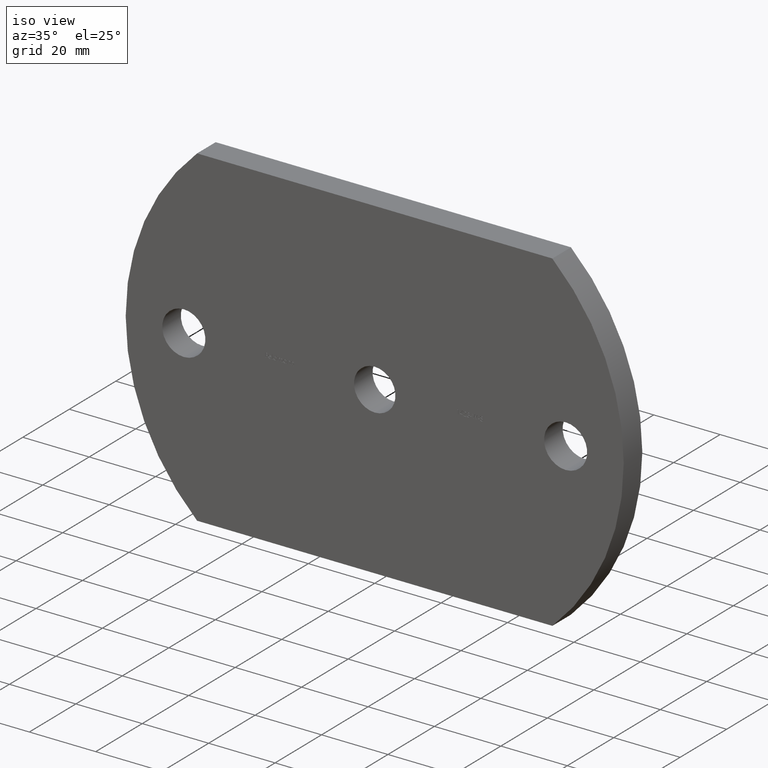
[diagram: clean part render]
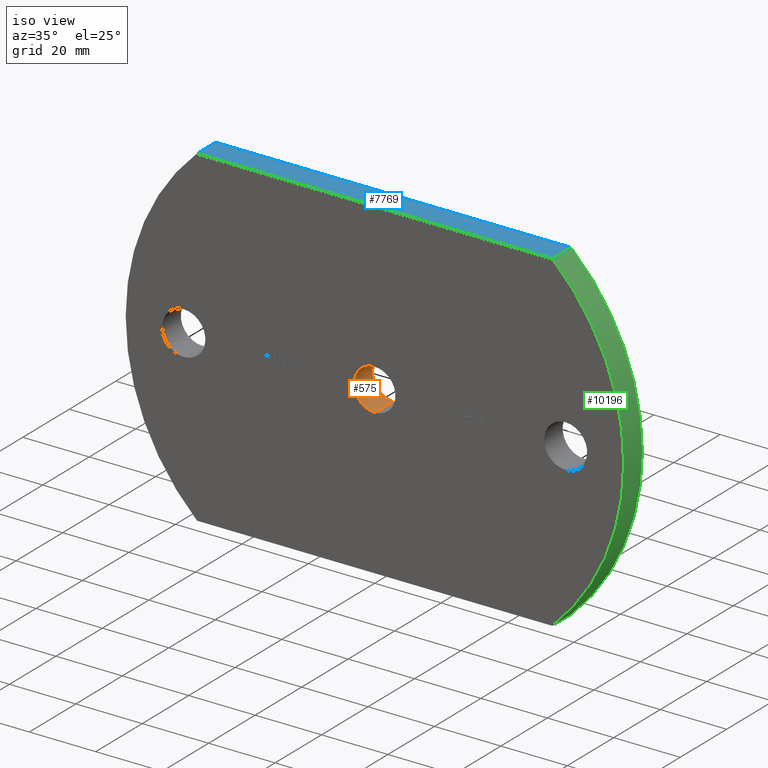
[diagram: same view with three faces highlighted in distinct colors, each labeled with its STEP entity id]
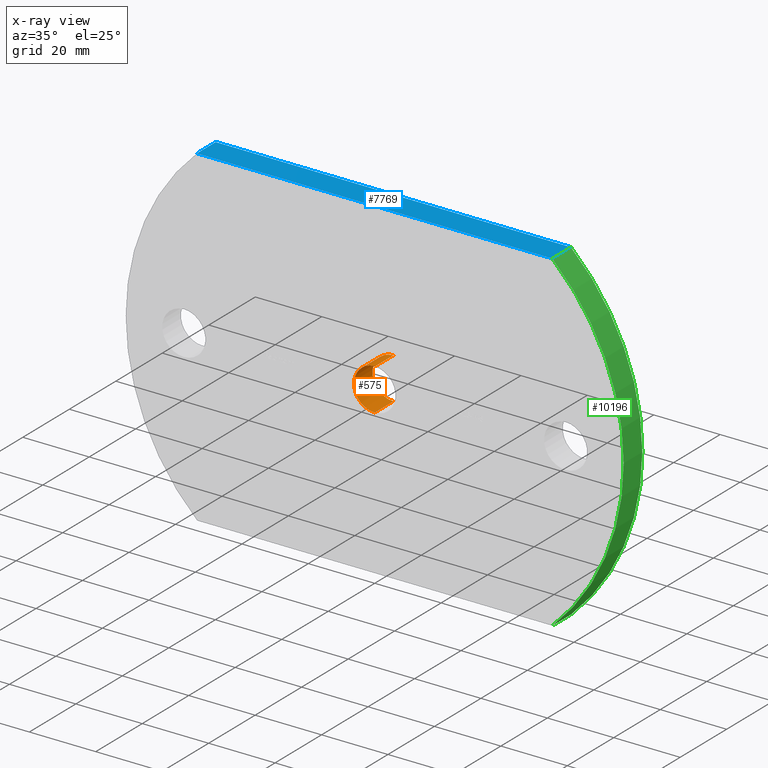
[diagram: x-ray of the same camera — body ghosted, the three highlighted faces saturated]
A machine part, iso view with three faces highlighted in distinct colors.
The next image is the same camera in x-ray (body ghosted, the three faces saturated) — at least one of them is partly hidden behind the body in this view.
Their STEP definitions:

[orange] entity #575 — the highlighted cylindrical surface (edge-blend (fillet) strip) has radius 6.25 mm, axis along (-0, 1, -0).
#20 = CARTESIAN_POINT ( 'NONE',  ( 7.654042494670957600E-016, 0.0000000000000000000, -6.250000000000000000 ) ) ;
#515 = FACE_OUTER_BOUND ( 'NONE', #1106, .T. ) ;
#569 = ORIENTED_EDGE ( 'NONE', *, *, #766, .T. ) ;
#575 = ADVANCED_FACE ( 'NONE', ( #515 ), #5913, .F. ) ;
#726 = DIRECTION ( 'NONE',  ( 0.0000000000000000000, 1.000000000000000000, 0.0000000000000000000 ) ) ;
#766 = EDGE_CURVE ( 'NONE', #8371, #11039, #2379, .T. ) ;
#1088 = LINE ( 'NONE', #5929, #1891 ) ;
#1106 = EDGE_LOOP ( 'NONE', ( #6740, #10033, #569, #9716 ) ) ;
#1891 = VECTOR ( 'NONE', #3463, 1000.000000000000000 ) ;
#2170 = VECTOR ( 'NONE', #9949, 1000.000000000000000 ) ;
#2284 = DIRECTION ( 'NONE',  ( 0.0000000000000000000, 0.0000000000000000000, 1.000000000000000000 ) ) ;
#2379 = CIRCLE ( 'NONE', #6668, 6.250000000000000000 ) ;
#3365 = DIRECTION ( 'NONE',  ( 0.0000000000000000000, 0.0000000000000000000, 1.000000000000000000 ) ) ;
#3463 = DIRECTION ( 'NONE',  ( -0.0000000000000000000, 1.000000000000000000, -0.0000000000000000000 ) ) ;
#3617 = DIRECTION ( 'NONE',  ( 0.0000000000000000000, 0.0000000000000000000, 1.000000000000000000 ) ) ;
#4047 = CARTESIAN_POINT ( 'NONE',  ( 0.0000000000000000000, 0.0000000000000000000, 0.0000000000000000000 ) ) ;
#5008 = VERTEX_POINT ( 'NONE', #20 ) ;
#5520 = CARTESIAN_POINT ( 'NONE',  ( 7.654042494670957600E-016, 0.0000000000000000000, -6.250000000000000000 ) ) ;
#5743 = CIRCLE ( 'NONE', #6687, 6.250000000000000000 ) ;
#5913 = CYLINDRICAL_SURFACE ( 'NONE', #6897, 6.250000000000000000 ) ;
#5929 = CARTESIAN_POINT ( 'NONE',  ( 0.0000000000000000000, 0.0000000000000000000, 6.250000000000000000 ) ) ;
#6220 = EDGE_CURVE ( 'NONE', #9806, #11039, #1088, .T. ) ;
#6668 = AXIS2_PLACEMENT_3D ( 'NONE', #7658, #726, #3365 ) ;
#6687 = AXIS2_PLACEMENT_3D ( 'NONE', #7054, #7089, #3617 ) ;
#6740 = ORIENTED_EDGE ( 'NONE', *, *, #8071, .F. ) ;
#6897 = AXIS2_PLACEMENT_3D ( 'NONE', #4047, #7504, #2284 ) ;
#7054 = CARTESIAN_POINT ( 'NONE',  ( 0.0000000000000000000, 0.0000000000000000000, 0.0000000000000000000 ) ) ;
#7089 = DIRECTION ( 'NONE',  ( 0.0000000000000000000, 1.000000000000000000, 0.0000000000000000000 ) ) ;
#7442 = LINE ( 'NONE', #5520, #2170 ) ;
#7504 = DIRECTION ( 'NONE',  ( -0.0000000000000000000, 1.000000000000000000, -0.0000000000000000000 ) ) ;
#7658 = CARTESIAN_POINT ( 'NONE',  ( 0.0000000000000000000, 8.000000000000000000, 0.0000000000000000000 ) ) ;
#8071 = EDGE_CURVE ( 'NONE', #5008, #9806, #5743, .T. ) ;
#8371 = VERTEX_POINT ( 'NONE', #9447 ) ;
#9447 = CARTESIAN_POINT ( 'NONE',  ( 7.654042494670957600E-016, 8.000000000000000000, -6.250000000000000000 ) ) ;
#9716 = ORIENTED_EDGE ( 'NONE', *, *, #6220, .F. ) ;
#9806 = VERTEX_POINT ( 'NONE', #10362 ) ;
#9949 = DIRECTION ( 'NONE',  ( -0.0000000000000000000, 1.000000000000000000, -0.0000000000000000000 ) ) ;
#10033 = ORIENTED_EDGE ( 'NONE', *, *, #10643, .T. ) ;
#10362 = CARTESIAN_POINT ( 'NONE',  ( 0.0000000000000000000, 0.0000000000000000000, 6.250000000000000000 ) ) ;
#10643 = EDGE_CURVE ( 'NONE', #5008, #8371, #7442, .T. ) ;
#10915 = CARTESIAN_POINT ( 'NONE',  ( 0.0000000000000000000, 8.000000000000000000, 6.250000000000000000 ) ) ;
#11039 = VERTEX_POINT ( 'NONE', #10915 ) ;

[blue] entity #7769 — the highlighted planar face has unit normal (0, 0, -1).
#146 = VERTEX_POINT ( 'NONE', #4804 ) ;
#609 = CARTESIAN_POINT ( 'NONE',  ( -53.50000000000003600, 8.000000000000000000, 49.99999999999998600 ) ) ;
#790 = DIRECTION ( 'NONE',  ( -1.000000000000000000, 0.0000000000000000000, -2.593979029498029800E-016 ) ) ;
#970 = VECTOR ( 'NONE', #9490, 1000.000000000000000 ) ;
#1288 = DIRECTION ( 'NONE',  ( -0.0000000000000000000, -1.000000000000000000, -0.0000000000000000000 ) ) ;
#1587 = CARTESIAN_POINT ( 'NONE',  ( -53.50000000000003600, 0.0000000000000000000, 49.99999999999998600 ) ) ;
#1612 = CARTESIAN_POINT ( 'NONE',  ( -53.50000000000003600, 8.000000000000000000, 49.99999999999998600 ) ) ;
#2040 = CARTESIAN_POINT ( 'NONE',  ( -53.50000000000003600, 8.000000000000000000, 49.99999999999998600 ) ) ;
#2088 = ORIENTED_EDGE ( 'NONE', *, *, #6080, .F. ) ;
#2270 = VERTEX_POINT ( 'NONE', #11154 ) ;
#2399 = ORIENTED_EDGE ( 'NONE', *, *, #5447, .F. ) ;
#3458 = EDGE_CURVE ( 'NONE', #4503, #2270, #9614, .T. ) ;
#3790 = VECTOR ( 'NONE', #4087, 1000.000000000000000 ) ;
#4087 = DIRECTION ( 'NONE',  ( 1.000000000000000000, 0.0000000000000000000, 2.593979029498029300E-016 ) ) ;
#4403 = VECTOR ( 'NONE', #1288, 1000.000000000000000 ) ;
#4503 = VERTEX_POINT ( 'NONE', #1587 ) ;
#4804 = CARTESIAN_POINT ( 'NONE',  ( 53.49999999999996400, 8.000000000000000000, 50.00000000000001400 ) ) ;
#4824 = FACE_OUTER_BOUND ( 'NONE', #9360, .T. ) ;
#4919 = VECTOR ( 'NONE', #9451, 1000.000000000000000 ) ;
#5252 = ORIENTED_EDGE ( 'NONE', *, *, #9105, .T. ) ;
#5447 = EDGE_CURVE ( 'NONE', #146, #2270, #7314, .T. ) ;
#5954 = LINE ( 'NONE', #609, #3790 ) ;
#6080 = EDGE_CURVE ( 'NONE', #9162, #146, #5954, .T. ) ;
#6825 = DIRECTION ( 'NONE',  ( 2.593979029498029800E-016, 0.0000000000000000000, -1.000000000000000000 ) ) ;
#6843 = AXIS2_PLACEMENT_3D ( 'NONE', #1612, #6825, #790 ) ;
#6893 = CARTESIAN_POINT ( 'NONE',  ( -53.50000000000003600, 0.0000000000000000000, 49.99999999999998600 ) ) ;
#6953 = LINE ( 'NONE', #2040, #4403 ) ;
#7314 = LINE ( 'NONE', #10320, #970 ) ;
#7396 = CARTESIAN_POINT ( 'NONE',  ( -53.50000000000003600, 8.000000000000000000, 49.99999999999998600 ) ) ;
#7769 = ADVANCED_FACE ( 'NONE', ( #4824 ), #10214, .F. ) ;
#9105 = EDGE_CURVE ( 'NONE', #9162, #4503, #6953, .T. ) ;
#9162 = VERTEX_POINT ( 'NONE', #7396 ) ;
#9360 = EDGE_LOOP ( 'NONE', ( #9398, #2399, #2088, #5252 ) ) ;
#9398 = ORIENTED_EDGE ( 'NONE', *, *, #3458, .T. ) ;
#9451 = DIRECTION ( 'NONE',  ( 1.000000000000000000, 0.0000000000000000000, 2.593979029498029300E-016 ) ) ;
#9490 = DIRECTION ( 'NONE',  ( -0.0000000000000000000, -1.000000000000000000, -0.0000000000000000000 ) ) ;
#9614 = LINE ( 'NONE', #6893, #4919 ) ;
#10214 = PLANE ( 'NONE',  #6843 ) ;
#10320 = CARTESIAN_POINT ( 'NONE',  ( 53.49999999999996400, 8.000000000000000000, 50.00000000000001400 ) ) ;
#11154 = CARTESIAN_POINT ( 'NONE',  ( 53.49999999999996400, 0.0000000000000000000, 50.00000000000001400 ) ) ;

[green] entity #10196 — the highlighted cylindrical surface (partial cylindrical patch) has radius 68.8895 mm, axis along (-0, -1, -0).
#146 = VERTEX_POINT ( 'NONE', #4804 ) ;
#970 = VECTOR ( 'NONE', #9490, 1000.000000000000000 ) ;
#1266 = VERTEX_POINT ( 'NONE', #5302 ) ;
#1888 = DIRECTION ( 'NONE',  ( 0.0000000000000000000, 0.0000000000000000000, -1.000000000000000000 ) ) ;
#1952 = VECTOR ( 'NONE', #7866, 1000.000000000000000 ) ;
#2057 = DIRECTION ( 'NONE',  ( 0.0000000000000000000, 1.000000000000000000, -0.0000000000000000000 ) ) ;
#2270 = VERTEX_POINT ( 'NONE', #11154 ) ;
#2338 = EDGE_CURVE ( 'NONE', #1266, #7149, #7091, .T. ) ;
#2558 = EDGE_CURVE ( 'NONE', #2270, #7149, #3030, .T. ) ;
#2826 = ORIENTED_EDGE ( 'NONE', *, *, #5447, .T. ) ;
#2984 = DIRECTION ( 'NONE',  ( 0.0000000000000000000, 0.0000000000000000000, -1.000000000000000000 ) ) ;
#3030 = CIRCLE ( 'NONE', #8580, 68.88953488372092700 ) ;
#3588 = EDGE_CURVE ( 'NONE', #146, #1266, #5042, .T. ) ;
#3637 = DIRECTION ( 'NONE',  ( -0.0000000000000000000, -1.000000000000000000, -0.0000000000000000000 ) ) ;
#3987 = DIRECTION ( 'NONE',  ( 0.0000000000000000000, 0.0000000000000000000, -1.000000000000000000 ) ) ;
#4318 = ORIENTED_EDGE ( 'NONE', *, *, #2338, .F. ) ;
#4514 = FACE_OUTER_BOUND ( 'NONE', #5543, .T. ) ;
#4561 = CARTESIAN_POINT ( 'NONE',  ( 6.110465116279065100, 8.000000000000000000, 0.0000000000000000000 ) ) ;
#4804 = CARTESIAN_POINT ( 'NONE',  ( 53.49999999999996400, 8.000000000000000000, 50.00000000000001400 ) ) ;
#4844 = ORIENTED_EDGE ( 'NONE', *, *, #2558, .T. ) ;
#5042 = CIRCLE ( 'NONE', #10292, 68.88953488372092700 ) ;
#5302 = CARTESIAN_POINT ( 'NONE',  ( 53.50000000000000700, 8.000000000000000000, -49.99999999999998600 ) ) ;
#5447 = EDGE_CURVE ( 'NONE', #146, #2270, #7314, .T. ) ;
#5543 = EDGE_LOOP ( 'NONE', ( #4844, #4318, #8137, #2826 ) ) ;
#6173 = CARTESIAN_POINT ( 'NONE',  ( 53.50000000000000700, 8.000000000000000000, -49.99999999999998600 ) ) ;
#7091 = LINE ( 'NONE', #6173, #1952 ) ;
#7149 = VERTEX_POINT ( 'NONE', #7171 ) ;
#7171 = CARTESIAN_POINT ( 'NONE',  ( 53.50000000000000700, 0.0000000000000000000, -49.99999999999998600 ) ) ;
#7314 = LINE ( 'NONE', #10320, #970 ) ;
#7866 = DIRECTION ( 'NONE',  ( -0.0000000000000000000, -1.000000000000000000, -0.0000000000000000000 ) ) ;
#7897 = AXIS2_PLACEMENT_3D ( 'NONE', #4561, #3637, #1888 ) ;
#8137 = ORIENTED_EDGE ( 'NONE', *, *, #3588, .F. ) ;
#8242 = CARTESIAN_POINT ( 'NONE',  ( 6.110465116279065100, 0.0000000000000000000, 0.0000000000000000000 ) ) ;
#8580 = AXIS2_PLACEMENT_3D ( 'NONE', #8242, #9152, #3987 ) ;
#9152 = DIRECTION ( 'NONE',  ( 0.0000000000000000000, 1.000000000000000000, -0.0000000000000000000 ) ) ;
#9490 = DIRECTION ( 'NONE',  ( -0.0000000000000000000, -1.000000000000000000, -0.0000000000000000000 ) ) ;
#9932 = CARTESIAN_POINT ( 'NONE',  ( 6.110465116279065100, 8.000000000000000000, 0.0000000000000000000 ) ) ;
#10196 = ADVANCED_FACE ( 'NONE', ( #4514 ), #11113, .T. ) ;
#10292 = AXIS2_PLACEMENT_3D ( 'NONE', #9932, #2057, #2984 ) ;
#10320 = CARTESIAN_POINT ( 'NONE',  ( 53.49999999999996400, 8.000000000000000000, 50.00000000000001400 ) ) ;
#11113 = CYLINDRICAL_SURFACE ( 'NONE', #7897, 68.88953488372092700 ) ;
#11154 = CARTESIAN_POINT ( 'NONE',  ( 53.49999999999996400, 0.0000000000000000000, 50.00000000000001400 ) ) ;